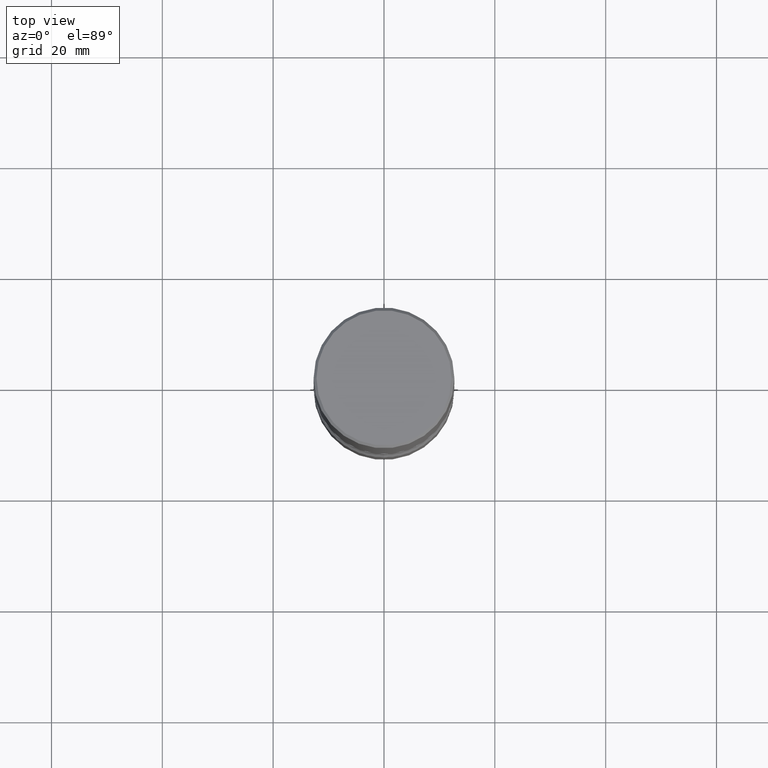
[diagram: clean part render]
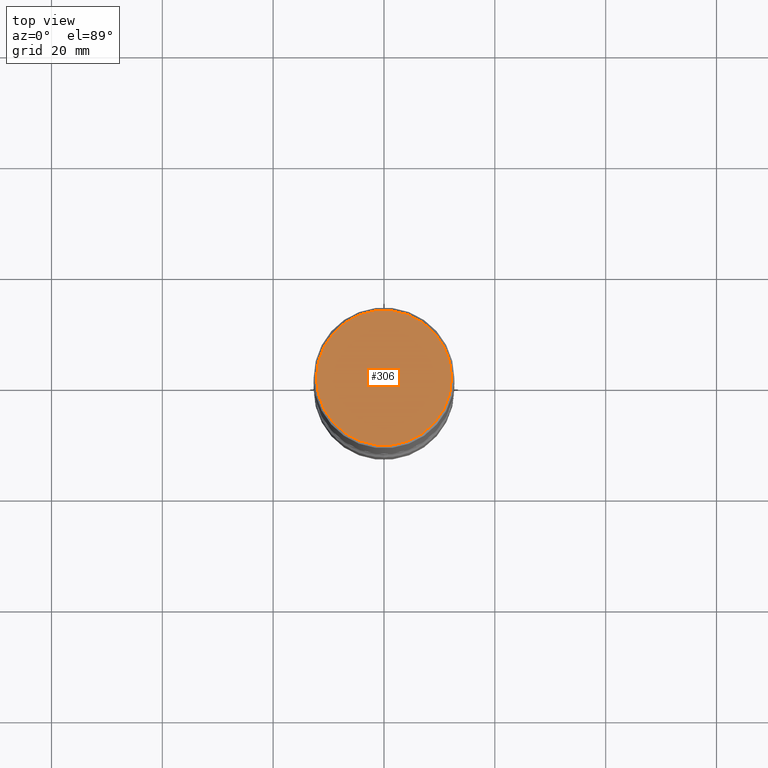
[diagram: same view with one face highlighted and labeled with its STEP entity id]
A machine part, top view. The second image highlights one B-rep face of the part: STEP entity #306.
In plain terms, the highlighted planar face has unit normal (0, -0, -1).
Its self-contained STEP definition (entity closure, byte-faithful):
#55 = VERTEX_POINT ( 'NONE', #552 ) ;
#101 = EDGE_LOOP ( 'NONE', ( #269, #638 ) ) ;
#105 = CIRCLE ( 'NONE', #565, 0.4799999999999996492 ) ;
#201 = DIRECTION ( 'NONE',  ( 1.000000000000000000, -6.982962677686267499E-15, 4.876036955247132767E-29 ) ) ;
#213 = FACE_OUTER_BOUND ( 'NONE', #101, .T. ) ;
#252 = DIRECTION ( 'NONE',  ( -2.445468806185136597E-29, 3.491481338843145583E-15, 1.000000000000000000 ) ) ;
#269 = ORIENTED_EDGE ( 'NONE', *, *, #589, .T. ) ;
#306 = ADVANCED_FACE ( 'NONE', ( #213 ), #691, .F. ) ;
#336 = CARTESIAN_POINT ( 'NONE',  ( 3.351822085289405181E-15, 0.4799999999999996492, -1.669508273909558064E-15 ) ) ;
#358 = CARTESIAN_POINT ( 'NONE',  ( -3.131554243005659264E-46, 4.471029511141341874E-32, 1.280553747030123384E-17 ) ) ;
#431 = DIRECTION ( 'NONE',  ( 1.000000000000000000, -6.982962677686267499E-15, 4.876036955247132767E-29 ) ) ;
#446 = CIRCLE ( 'NONE', #607, 0.4799999999999996492 ) ;
#449 = CARTESIAN_POINT ( 'NONE',  ( -3.131554243005659264E-46, 4.471029511141341874E-32, 1.280553747030123384E-17 ) ) ;
#485 = EDGE_CURVE ( 'NONE', #55, #570, #446, .T. ) ;
#505 = DIRECTION ( 'NONE',  ( -1.000000000000000000, 6.982962677686265922E-15, -4.876176775795935793E-29 ) ) ;
#552 = CARTESIAN_POINT ( 'NONE',  ( 0.4799999999999996492, -3.396558832296479732E-15, 1.280553747032483033E-17 ) ) ;
#565 = AXIS2_PLACEMENT_3D ( 'NONE', #449, #749, #201 ) ;
#570 = VERTEX_POINT ( 'NONE', #792 ) ;
#573 = DIRECTION ( 'NONE',  ( 2.438088387897960049E-29, -3.491481338843145188E-15, -1.000000000000000000 ) ) ;
#589 = EDGE_CURVE ( 'NONE', #570, #55, #105, .T. ) ;
#607 = AXIS2_PLACEMENT_3D ( 'NONE', #358, #252, #431 ) ;
#638 = ORIENTED_EDGE ( 'NONE', *, *, #485, .T. ) ;
#691 = PLANE ( 'NONE',  #791 ) ;
#749 = DIRECTION ( 'NONE',  ( -2.445468806185136597E-29, 3.491481338843145583E-15, 1.000000000000000000 ) ) ;
#791 = AXIS2_PLACEMENT_3D ( 'NONE', #336, #573, #505 ) ;
#792 = CARTESIAN_POINT ( 'NONE',  ( -0.4799999999999996492, 3.386736898677836436E-15, 1.280553747027767124E-17 ) ) ;